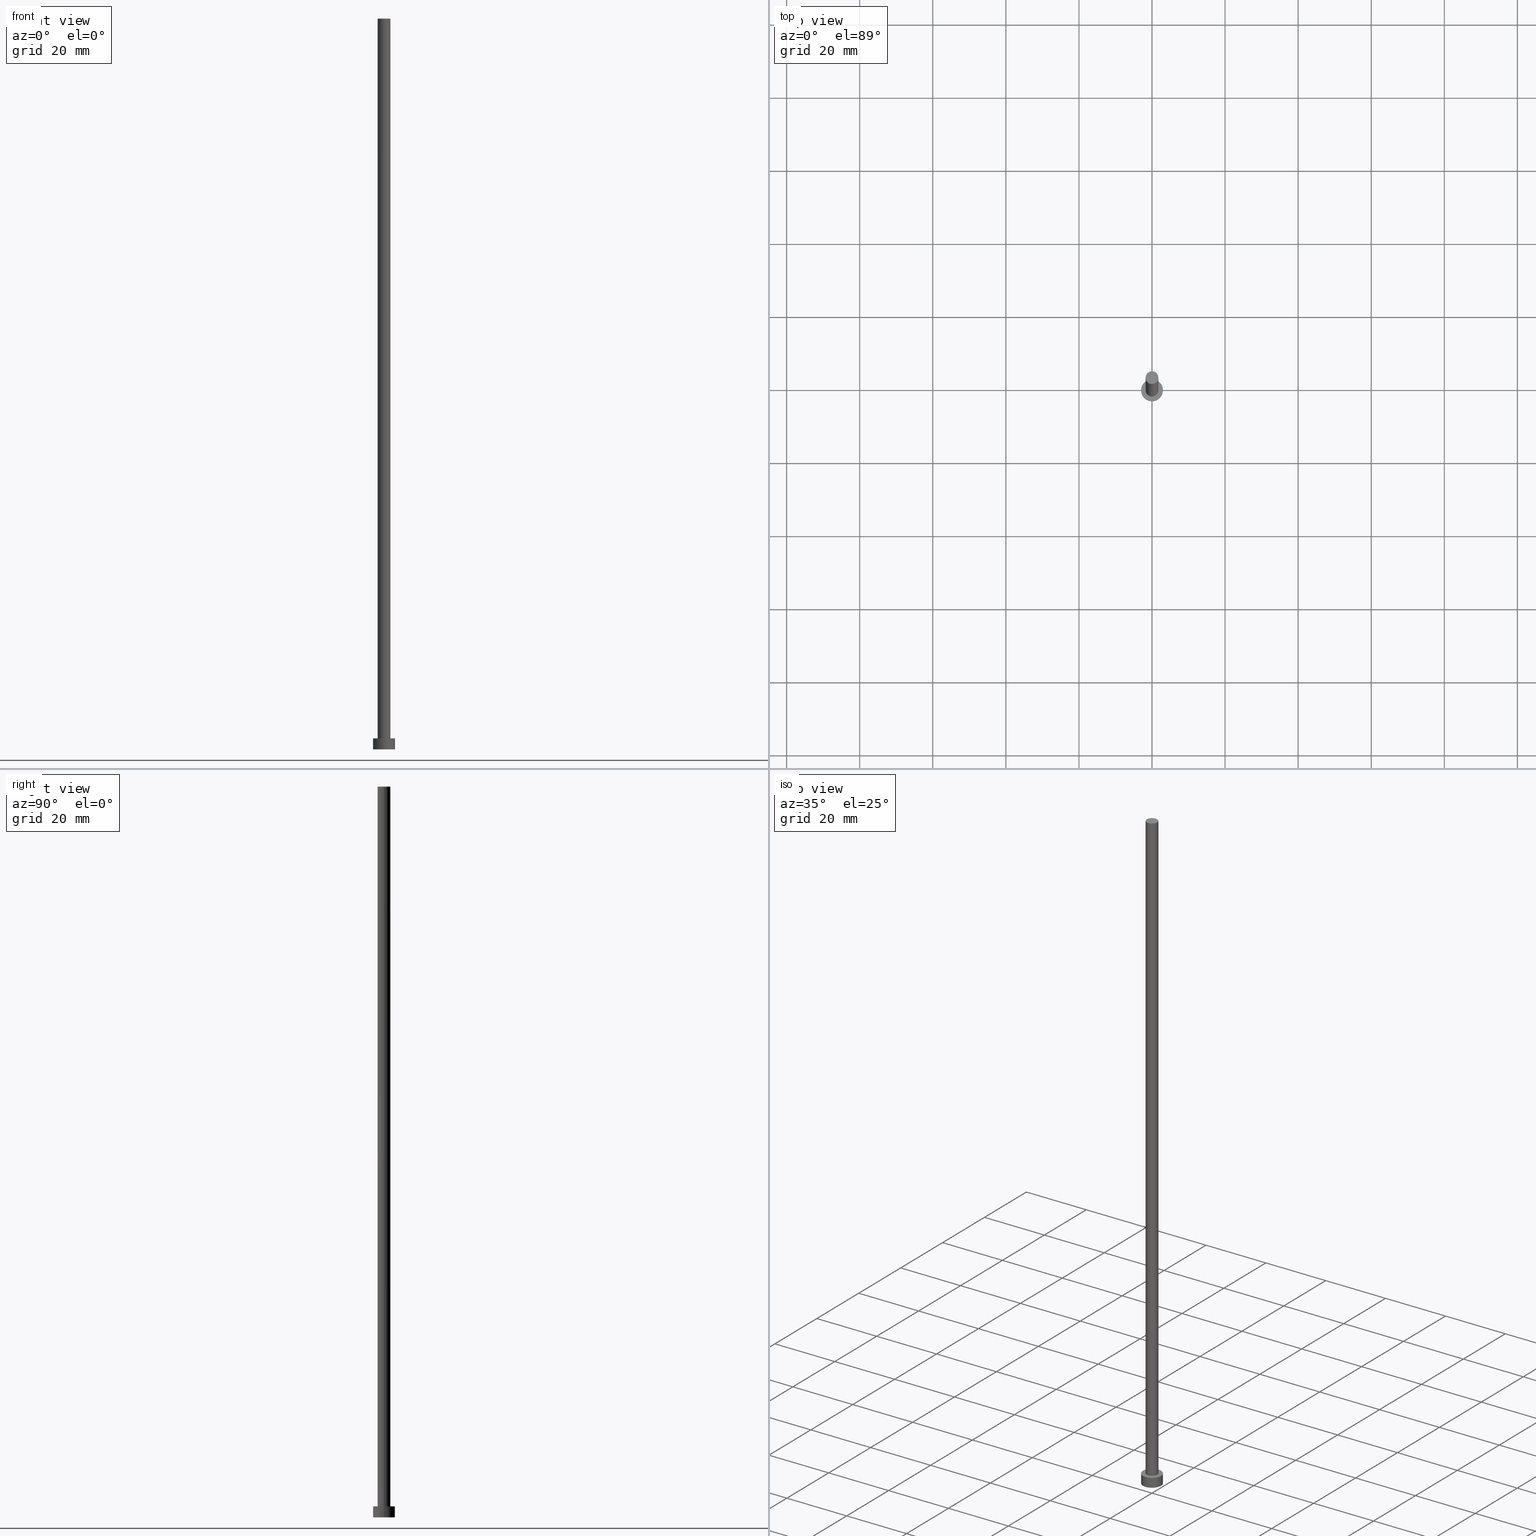
[diagram: canonical four-view strip — front | top / right | iso, engineering-drawing reading convention]
A machine part, canonical four-view strip (front | top / right | iso — engineering-drawing reading convention). The complete STEP part file that produces these views, byte-faithful:
ISO-10303-21;
HEADER;
FILE_DESCRIPTION (( 'STEP AP203' ),
    '1' );
FILE_NAME ('4e38.STEP',
    '2023-02-13T16:50:53',
    ( '' ),
    ( '' ),
    'SwSTEP 2.0',
    'SolidWorks 2019',
    '' );
FILE_SCHEMA (( 'CONFIG_CONTROL_DESIGN' ));
ENDSEC;

DATA;
#1 = COORDINATED_UNIVERSAL_TIME_OFFSET ( 1, 0, .AHEAD. ) ;
#2 = CALENDAR_DATE ( 2023, 13, 2 ) ;
#3 = ORIENTED_EDGE ( 'NONE', *, *, #55, .F. ) ;
#4 = DIRECTION ( 'NONE',  ( -1.000000000000000000, 0.000000000000000000, 0.000000000000000000 ) ) ;
#5 = ADVANCED_FACE ( 'NONE', ( #111, #207 ), #42, .T. ) ;
#6 = ORIENTED_EDGE ( 'NONE', *, *, #158, .T. ) ;
#7 = CARTESIAN_POINT ( 'NONE',  ( 0.000000000000000000, 0.000000000000000000, 3.000000000000000000 ) ) ;
#8 = EDGE_LOOP ( 'NONE', ( #37, #146 ) ) ;
#9 = DIRECTION ( 'NONE',  ( 1.000000000000000000, 0.000000000000000000, 0.000000000000000000 ) ) ;
#10 = APPLICATION_PROTOCOL_DEFINITION ( 'international standard', 'config_control_design', 1994, #29 ) ;
#11 = CC_DESIGN_APPROVAL ( #232, ( #16 ) ) ;
#12 = AXIS2_PLACEMENT_3D ( 'NONE', #190, #148, #4 ) ;
#13 = LINE ( 'NONE', #136, #165 ) ;
#14 = CARTESIAN_POINT ( 'NONE',  ( 3.000000000000000444, 3.673940397442060361E-16, 0.000000000000000000 ) ) ;
#15 = CARTESIAN_POINT ( 'NONE',  ( 0.000000000000000000, 0.000000000000000000, 3.000000000000000000 ) ) ;
#16 = PRODUCT_DEFINITION_FORMATION_WITH_SPECIFIED_SOURCE ( 'LIBOVOLN�', '', #49, .NOT_KNOWN. ) ;
#17 = CIRCLE ( 'NONE', #52, 1.750000000000000000 ) ;
#18 = CC_DESIGN_DATE_AND_TIME_ASSIGNMENT ( #200, #82, ( #182 ) ) ;
#19 = ORIENTED_EDGE ( 'NONE', *, *, #224, .F. ) ;
#20 = DATE_AND_TIME ( #241, #160 ) ;
#21 = DIRECTION ( 'NONE',  ( 1.000000000000000000, 0.000000000000000000, 0.000000000000000000 ) ) ;
#22 = ADVANCED_FACE ( 'NONE', ( #171 ), #249, .T. ) ;
#23 = ORIENTED_EDGE ( 'NONE', *, *, #144, .T. ) ;
#24 = VERTEX_POINT ( 'NONE', #89 ) ;
#25 = DIRECTION ( 'NONE',  ( 0.000000000000000000, 0.000000000000000000, 1.000000000000000000 ) ) ;
#26 = LOCAL_TIME ( 17, 50, 53.00000000000000000, #41 ) ;
#27 = ORIENTED_EDGE ( 'NONE', *, *, #35, .F. ) ;
#28 = APPROVAL ( #100, 'NEUR�EN�' ) ;
#29 = APPLICATION_CONTEXT ( 'configuration controlled 3d designs of mechanical parts and assemblies' ) ;
#30 = ORIENTED_EDGE ( 'NONE', *, *, #224, .T. ) ;
#31 = LINE ( 'NONE', #78, #105 ) ;
#32 = ADVANCED_FACE ( 'NONE', ( #130 ), #88, .T. ) ;
#33 = CARTESIAN_POINT ( 'NONE',  ( 0.000000000000000000, 0.000000000000000000, 200.0000000000000000 ) ) ;
#34 = DIRECTION ( 'NONE',  ( 1.000000000000000000, 0.000000000000000000, 0.000000000000000000 ) ) ;
#35 = EDGE_CURVE ( 'NONE', #246, #227, #154, .T. ) ;
#36 = APPLICATION_PROTOCOL_DEFINITION ( 'international standard', 'config_control_design', 1994, #126 ) ;
#37 = ORIENTED_EDGE ( 'NONE', *, *, #140, .T. ) ;
#38 = LOCAL_TIME ( 17, 50, 53.00000000000000000, #63 ) ;
#39 = PERSON_AND_ORGANIZATION_ROLE ( 'classification_officer' ) ;
#40 = AXIS2_PLACEMENT_3D ( 'NONE', #181, #118, #34 ) ;
#41 = COORDINATED_UNIVERSAL_TIME_OFFSET ( 1, 0, .AHEAD. ) ;
#42 = PLANE ( 'NONE',  #238 ) ;
#43 = APPROVAL_PERSON_ORGANIZATION ( #183, #109, #240 ) ;
#44 = UNCERTAINTY_MEASURE_WITH_UNIT (LENGTH_MEASURE( 1.000000000000000082E-05 ), #91, 'distance_accuracy_value', 'NONE');
#45 = ORIENTED_EDGE ( 'NONE', *, *, #169, .T. ) ;
#46 = AXIS2_PLACEMENT_3D ( 'NONE', #90, #149, #228 ) ;
#47 = EDGE_LOOP ( 'NONE', ( #226, #230, #30, #194 ) ) ;
#48 = LINE ( 'NONE', #131, #112 ) ;
#49 = PRODUCT ( '4e38', '4e38', '', ( #104 ) ) ;
#50 = AXIS2_PLACEMENT_3D ( 'NONE', #137, #215, #75 ) ;
#51 = VERTEX_POINT ( 'NONE', #206 ) ;
#52 = AXIS2_PLACEMENT_3D ( 'NONE', #33, #196, #135 ) ;
#53 = DIRECTION ( 'NONE',  ( -0.000000000000000000, -0.000000000000000000, -1.000000000000000000 ) ) ;
#54 = CARTESIAN_POINT ( 'NONE',  ( -1.750000000000000000, 0.000000000000000000, 3.000000000000000000 ) ) ;
#55 = EDGE_CURVE ( 'NONE', #51, #175, #163, .T. ) ;
#56 = AXIS2_PLACEMENT_3D ( 'NONE', #142, #161, #21 ) ;
#57 = CARTESIAN_POINT ( 'NONE',  ( 0.000000000000000000, 0.000000000000000000, 3.000000000000000000 ) ) ;
#58 = CYLINDRICAL_SURFACE ( 'NONE', #167, 1.750000000000000000 ) ;
#59 = DIRECTION ( 'NONE',  ( 0.000000000000000000, 0.000000000000000000, 1.000000000000000000 ) ) ;
#60 = PERSON_AND_ORGANIZATION_ROLE ( 'creator' ) ;
#61 = APPROVAL_PERSON_ORGANIZATION ( #166, #232, #64 ) ;
#62 = APPROVAL_DATE_TIME ( #184, #109 ) ;
#63 = COORDINATED_UNIVERSAL_TIME_OFFSET ( 1, 0, .AHEAD. ) ;
#64 = APPROVAL_ROLE ( '' ) ;
#65 = CC_DESIGN_PERSON_AND_ORGANIZATION_ASSIGNMENT ( #205, #80, ( #49 ) ) ;
#66 = PERSON ( 'NEUR�EN�', 'NEUR�EN�', 'NEUR�EN�', ('NEUR�EN�'), ('NEUR�EN�'), ('NEUR�EN�') ) ;
#67 = EDGE_LOOP ( 'NONE', ( #45, #6 ) ) ;
#68 = CARTESIAN_POINT ( 'NONE',  ( 0.000000000000000000, 0.000000000000000000, 3.000000000000000000 ) ) ;
#69 = CIRCLE ( 'NONE', #50, 3.000000000000000444 ) ;
#70 = EDGE_LOOP ( 'NONE', ( #185, #225, #102, #132 ) ) ;
#71 = CARTESIAN_POINT ( 'NONE',  ( 0.000000000000000000, 0.000000000000000000, 200.0000000000000000 ) ) ;
#72 = ADVANCED_FACE ( 'NONE', ( #106 ), #73, .T. ) ;
#73 = PLANE ( 'NONE',  #248 ) ;
#74 = AXIS2_PLACEMENT_3D ( 'NONE', #76, #59, #180 ) ;
#75 = DIRECTION ( 'NONE',  ( 1.000000000000000000, 0.000000000000000000, 0.000000000000000000 ) ) ;
#76 = CARTESIAN_POINT ( 'NONE',  ( 0.000000000000000000, 0.000000000000000000, 0.000000000000000000 ) ) ;
#77 = CC_DESIGN_APPROVAL ( #28, ( #182 ) ) ;
#78 = CARTESIAN_POINT ( 'NONE',  ( -1.750000000000000000, 0.000000000000000000, 200.0000000000000000 ) ) ;
#79 = CLOSED_SHELL ( 'NONE', ( #129, #32, #193, #5, #150, #22, #72 ) ) ;
#80 = PERSON_AND_ORGANIZATION_ROLE ( 'design_owner' ) ;
#81 = AXIS2_PLACEMENT_3D ( 'NONE', #68, #87, #115 ) ;
#82 = DATE_TIME_ROLE ( 'creation_date' ) ;
#83 = CC_DESIGN_PERSON_AND_ORGANIZATION_ASSIGNMENT ( #159, #60, ( #182 ) ) ;
#84 = PERSON_AND_ORGANIZATION ( #66, #202 ) ;
#85 = APPROVAL_ROLE ( '' ) ;
#86 = EDGE_LOOP ( 'NONE', ( #27, #168, #173, #209 ) ) ;
#87 = DIRECTION ( 'NONE',  ( 0.000000000000000000, 0.000000000000000000, 1.000000000000000000 ) ) ;
#88 = CYLINDRICAL_SURFACE ( 'NONE', #12, 3.000000000000000444 ) ;
#89 = CARTESIAN_POINT ( 'NONE',  ( 3.000000000000000444, 3.673940397442060361E-16, 3.000000000000000000 ) ) ;
#90 = CARTESIAN_POINT ( 'NONE',  ( 0.000000000000000000, 0.000000000000000000, 3.000000000000000000 ) ) ;
#91 =( LENGTH_UNIT ( ) NAMED_UNIT ( * ) SI_UNIT ( .MILLI., .METRE. ) );
#92 = AXIS2_PLACEMENT_3D ( 'NONE', #15, #197, #234 ) ;
#93 = CC_DESIGN_SECURITY_CLASSIFICATION ( #153, ( #16 ) ) ;
#94 = CC_DESIGN_PERSON_AND_ORGANIZATION_ASSIGNMENT ( #203, #145, ( #16 ) ) ;
#95 = CARTESIAN_POINT ( 'NONE',  ( 0.000000000000000000, 0.000000000000000000, 0.000000000000000000 ) ) ;
#96 = DIRECTION ( 'NONE',  ( 1.000000000000000000, 0.000000000000000000, -0.000000000000000000 ) ) ;
#97 = PERSON_AND_ORGANIZATION ( #66, #202 ) ;
#98 = CALENDAR_DATE ( 2023, 13, 2 ) ;
#99 = EDGE_CURVE ( 'NONE', #246, #51, #48, .T. ) ;
#100 = APPROVAL_STATUS ( 'not_yet_approved' ) ;
#101 =( GEOMETRIC_REPRESENTATION_CONTEXT ( 3 ) GLOBAL_UNCERTAINTY_ASSIGNED_CONTEXT ( ( #44 ) ) GLOBAL_UNIT_ASSIGNED_CONTEXT ( ( #91, #231, #119 ) ) REPRESENTATION_CONTEXT ( 'NONE', 'WORKASPACE' ) );
#102 = ORIENTED_EDGE ( 'NONE', *, *, #251, .T. ) ;
#103 = DATE_TIME_ROLE ( 'classification_date' ) ;
#104 = MECHANICAL_CONTEXT ( 'NONE', #29, 'mechanical' ) ;
#105 = VECTOR ( 'NONE', #134, 1000.000000000000000 ) ;
#106 = FACE_OUTER_BOUND ( 'NONE', #8, .T. ) ;
#107 = DESIGN_CONTEXT ( 'detailed design', #126, 'design' ) ;
#108 = DIRECTION ( 'NONE',  ( 1.000000000000000000, 0.000000000000000000, -0.000000000000000000 ) ) ;
#109 = APPROVAL ( #237, 'NEUR�EN�' ) ;
#110 = ORIENTED_EDGE ( 'NONE', *, *, #158, .F. ) ;
#111 = FACE_BOUND ( 'NONE', #243, .T. ) ;
#112 = VECTOR ( 'NONE', #210, 1000.000000000000000 ) ;
#113 = ORIENTED_EDGE ( 'NONE', *, *, #216, .F. ) ;
#114 = EDGE_CURVE ( 'NONE', #175, #51, #172, .T. ) ;
#115 = DIRECTION ( 'NONE',  ( 1.000000000000000000, 0.000000000000000000, 0.000000000000000000 ) ) ;
#116 = LOCAL_TIME ( 17, 50, 53.00000000000000000, #1 ) ;
#117 = AXIS2_PLACEMENT_3D ( 'NONE', #71, #127, #244 ) ;
#118 = DIRECTION ( 'NONE',  ( 0.000000000000000000, 0.000000000000000000, 1.000000000000000000 ) ) ;
#119 =( NAMED_UNIT ( * ) SI_UNIT ( $, .STERADIAN. ) SOLID_ANGLE_UNIT ( ) );
#120 = CARTESIAN_POINT ( 'NONE',  ( 0.000000000000000000, 0.000000000000000000, 200.0000000000000000 ) ) ;
#121 = COORDINATED_UNIVERSAL_TIME_OFFSET ( 1, 0, .AHEAD. ) ;
#122 = ORIENTED_EDGE ( 'NONE', *, *, #125, .F. ) ;
#123 = APPROVAL_DATE_TIME ( #221, #28 ) ;
#124 = APPROVAL_DATE_TIME ( #236, #232 ) ;
#125 = EDGE_CURVE ( 'NONE', #201, #220, #204, .T. ) ;
#126 = APPLICATION_CONTEXT ( 'configuration controlled 3d designs of mechanical parts and assemblies' ) ;
#127 = DIRECTION ( 'NONE',  ( 0.000000000000000000, 0.000000000000000000, 1.000000000000000000 ) ) ;
#128 = EDGE_LOOP ( 'NONE', ( #110, #23, #229, #19 ) ) ;
#129 = ADVANCED_FACE ( 'NONE', ( #176 ), #58, .T. ) ;
#130 = FACE_OUTER_BOUND ( 'NONE', #128, .T. ) ;
#131 = CARTESIAN_POINT ( 'NONE',  ( 1.750000000000000000, 2.143131898507868297E-16, 200.0000000000000000 ) ) ;
#132 = ORIENTED_EDGE ( 'NONE', *, *, #114, .T. ) ;
#133 = DIRECTION ( 'NONE',  ( -0.000000000000000000, -0.000000000000000000, -1.000000000000000000 ) ) ;
#134 = DIRECTION ( 'NONE',  ( -0.000000000000000000, -0.000000000000000000, -1.000000000000000000 ) ) ;
#135 = DIRECTION ( 'NONE',  ( 1.000000000000000000, 0.000000000000000000, 0.000000000000000000 ) ) ;
#136 = CARTESIAN_POINT ( 'NONE',  ( 3.000000000000000444, 3.673940397442060361E-16, 3.000000000000000000 ) ) ;
#137 = CARTESIAN_POINT ( 'NONE',  ( 0.000000000000000000, 0.000000000000000000, 3.000000000000000000 ) ) ;
#138 = APPROVAL_PERSON_ORGANIZATION ( #97, #28, #85 ) ;
#139 = CALENDAR_DATE ( 2023, 13, 2 ) ;
#140 = EDGE_CURVE ( 'NONE', #227, #246, #17, .T. ) ;
#141 = PERSON_AND_ORGANIZATION ( #66, #202 ) ;
#142 = CARTESIAN_POINT ( 'NONE',  ( 0.000000000000000000, 0.000000000000000000, 0.000000000000000000 ) ) ;
#143 = APPROVAL_STATUS ( 'not_yet_approved' ) ;
#144 = EDGE_CURVE ( 'NONE', #24, #220, #13, .T. ) ;
#145 = PERSON_AND_ORGANIZATION_ROLE ( 'design_supplier' ) ;
#146 = ORIENTED_EDGE ( 'NONE', *, *, #35, .T. ) ;
#147 = DIRECTION ( 'NONE',  ( -0.000000000000000000, -0.000000000000000000, -1.000000000000000000 ) ) ;
#148 = DIRECTION ( 'NONE',  ( -0.000000000000000000, -0.000000000000000000, -1.000000000000000000 ) ) ;
#149 = DIRECTION ( 'NONE',  ( 0.000000000000000000, 0.000000000000000000, 1.000000000000000000 ) ) ;
#150 = ADVANCED_FACE ( 'NONE', ( #198 ), #217, .F. ) ;
#151 = ORIENTED_EDGE ( 'NONE', *, *, #114, .F. ) ;
#152 = CIRCLE ( 'NONE', #156, 3.000000000000000444 ) ;
#153 = SECURITY_CLASSIFICATION ( '', '', #223 ) ;
#154 = CIRCLE ( 'NONE', #117, 1.750000000000000000 ) ;
#155 = DIRECTION ( 'NONE',  ( -1.000000000000000000, 0.000000000000000000, 0.000000000000000000 ) ) ;
#156 = AXIS2_PLACEMENT_3D ( 'NONE', #57, #157, #9 ) ;
#157 = DIRECTION ( 'NONE',  ( 0.000000000000000000, 0.000000000000000000, 1.000000000000000000 ) ) ;
#158 = EDGE_CURVE ( 'NONE', #24, #191, #152, .T. ) ;
#159 = PERSON_AND_ORGANIZATION ( #66, #202 ) ;
#160 = LOCAL_TIME ( 17, 50, 53.00000000000000000, #121 ) ;
#161 = DIRECTION ( 'NONE',  ( 0.000000000000000000, 0.000000000000000000, 1.000000000000000000 ) ) ;
#162 = MANIFOLD_SOLID_BREP ( 'P�idat vysunut�m3', #79 ) ;
#163 = CIRCLE ( 'NONE', #46, 1.750000000000000000 ) ;
#164 = PERSON_AND_ORGANIZATION_ROLE ( 'creator' ) ;
#165 = VECTOR ( 'NONE', #53, 1000.000000000000000 ) ;
#166 = PERSON_AND_ORGANIZATION ( #66, #202 ) ;
#167 = AXIS2_PLACEMENT_3D ( 'NONE', #120, #133, #155 ) ;
#168 = ORIENTED_EDGE ( 'NONE', *, *, #99, .T. ) ;
#169 = EDGE_CURVE ( 'NONE', #191, #24, #69, .T. ) ;
#170 = CARTESIAN_POINT ( 'NONE',  ( 0.000000000000000000, 0.000000000000000000, 200.0000000000000000 ) ) ;
#171 = FACE_OUTER_BOUND ( 'NONE', #70, .T. ) ;
#172 = CIRCLE ( 'NONE', #81, 1.750000000000000000 ) ;
#173 = ORIENTED_EDGE ( 'NONE', *, *, #55, .T. ) ;
#174 = PRODUCT_RELATED_PRODUCT_CATEGORY ( 'detail', '', ( #49 ) ) ;
#175 = VERTEX_POINT ( 'NONE', #54 ) ;
#176 = FACE_OUTER_BOUND ( 'NONE', #86, .T. ) ;
#177 = DIRECTION ( 'NONE',  ( -0.000000000000000000, -0.000000000000000000, -1.000000000000000000 ) ) ;
#178 = PRODUCT_DEFINITION_SHAPE ( 'NONE', 'NONE',  #182 ) ;
#179 = FACE_OUTER_BOUND ( 'NONE', #47, .T. ) ;
#180 = DIRECTION ( 'NONE',  ( 1.000000000000000000, 0.000000000000000000, 0.000000000000000000 ) ) ;
#181 = CARTESIAN_POINT ( 'NONE',  ( 0.000000000000000000, 0.000000000000000000, 0.000000000000000000 ) ) ;
#182 = PRODUCT_DEFINITION ( 'NEZN�M�', '', #16, #107 ) ;
#183 = PERSON_AND_ORGANIZATION ( #66, #202 ) ;
#184 = DATE_AND_TIME ( #219, #116 ) ;
#185 = ORIENTED_EDGE ( 'NONE', *, *, #99, .F. ) ;
#186 = AXIS2_PLACEMENT_3D ( 'NONE', #95, #235, #96 ) ;
#187 = AXIS2_PLACEMENT_3D ( 'NONE', #170, #147, #192 ) ;
#188 = SHAPE_DEFINITION_REPRESENTATION ( #178, #242 ) ;
#189 = CARTESIAN_POINT ( 'NONE',  ( 0.000000000000000000, 0.000000000000000000, 200.0000000000000000 ) ) ;
#190 = CARTESIAN_POINT ( 'NONE',  ( 0.000000000000000000, 0.000000000000000000, 3.000000000000000000 ) ) ;
#191 = VERTEX_POINT ( 'NONE', #233 ) ;
#192 = DIRECTION ( 'NONE',  ( -1.000000000000000000, 0.000000000000000000, 0.000000000000000000 ) ) ;
#193 = ADVANCED_FACE ( 'NONE', ( #179 ), #253, .T. ) ;
#194 = ORIENTED_EDGE ( 'NONE', *, *, #125, .T. ) ;
#195 = CC_DESIGN_DATE_AND_TIME_ASSIGNMENT ( #20, #103, ( #153 ) ) ;
#196 = DIRECTION ( 'NONE',  ( 0.000000000000000000, 0.000000000000000000, 1.000000000000000000 ) ) ;
#197 = DIRECTION ( 'NONE',  ( -0.000000000000000000, -0.000000000000000000, -1.000000000000000000 ) ) ;
#198 = FACE_OUTER_BOUND ( 'NONE', #222, .T. ) ;
#199 = CC_DESIGN_APPROVAL ( #109, ( #153 ) ) ;
#200 = DATE_AND_TIME ( #139, #26 ) ;
#201 = VERTEX_POINT ( 'NONE', #252 ) ;
#202 = ORGANIZATION ( 'NEUR�EN�', 'NEUR�EN�', '' ) ;
#203 = PERSON_AND_ORGANIZATION ( #66, #202 ) ;
#204 = CIRCLE ( 'NONE', #40, 3.000000000000000444 ) ;
#205 = PERSON_AND_ORGANIZATION ( #66, #202 ) ;
#206 = CARTESIAN_POINT ( 'NONE',  ( 1.750000000000000000, 2.143131898507868297E-16, 3.000000000000000000 ) ) ;
#207 = FACE_OUTER_BOUND ( 'NONE', #67, .T. ) ;
#208 = DIRECTION ( 'NONE',  ( 1.000000000000000000, 0.000000000000000000, -0.000000000000000000 ) ) ;
#209 = ORIENTED_EDGE ( 'NONE', *, *, #251, .F. ) ;
#210 = DIRECTION ( 'NONE',  ( -0.000000000000000000, -0.000000000000000000, -1.000000000000000000 ) ) ;
#211 = CARTESIAN_POINT ( 'NONE',  ( -1.750000000000000000, 0.000000000000000000, 200.0000000000000000 ) ) ;
#212 = CC_DESIGN_PERSON_AND_ORGANIZATION_ASSIGNMENT ( #84, #164, ( #16 ) ) ;
#213 = CARTESIAN_POINT ( 'NONE',  ( -3.000000000000000444, 0.000000000000000000, 3.000000000000000000 ) ) ;
#214 = CIRCLE ( 'NONE', #74, 3.000000000000000444 ) ;
#215 = DIRECTION ( 'NONE',  ( 0.000000000000000000, 0.000000000000000000, 1.000000000000000000 ) ) ;
#216 = EDGE_CURVE ( 'NONE', #220, #201, #214, .T. ) ;
#217 = PLANE ( 'NONE',  #186 ) ;
#218 = VECTOR ( 'NONE', #177, 1000.000000000000000 ) ;
#219 = CALENDAR_DATE ( 2023, 13, 2 ) ;
#220 = VERTEX_POINT ( 'NONE', #14 ) ;
#221 = DATE_AND_TIME ( #98, #38 ) ;
#222 = EDGE_LOOP ( 'NONE', ( #122, #113 ) ) ;
#223 = SECURITY_CLASSIFICATION_LEVEL ( 'unclassified' ) ;
#224 = EDGE_CURVE ( 'NONE', #191, #201, #254, .T. ) ;
#225 = ORIENTED_EDGE ( 'NONE', *, *, #140, .F. ) ;
#226 = ORIENTED_EDGE ( 'NONE', *, *, #144, .F. ) ;
#227 = VERTEX_POINT ( 'NONE', #211 ) ;
#228 = DIRECTION ( 'NONE',  ( 1.000000000000000000, 0.000000000000000000, 0.000000000000000000 ) ) ;
#229 = ORIENTED_EDGE ( 'NONE', *, *, #216, .T. ) ;
#230 = ORIENTED_EDGE ( 'NONE', *, *, #169, .F. ) ;
#231 =( NAMED_UNIT ( * ) PLANE_ANGLE_UNIT ( ) SI_UNIT ( $, .RADIAN. ) );
#232 = APPROVAL ( #143, 'NEUR�EN�' ) ;
#233 = CARTESIAN_POINT ( 'NONE',  ( -3.000000000000000444, 0.000000000000000000, 3.000000000000000000 ) ) ;
#234 = DIRECTION ( 'NONE',  ( -1.000000000000000000, 0.000000000000000000, 0.000000000000000000 ) ) ;
#235 = DIRECTION ( 'NONE',  ( 0.000000000000000000, 0.000000000000000000, 1.000000000000000000 ) ) ;
#236 = DATE_AND_TIME ( #2, #245 ) ;
#237 = APPROVAL_STATUS ( 'not_yet_approved' ) ;
#238 = AXIS2_PLACEMENT_3D ( 'NONE', #7, #25, #108 ) ;
#239 = COORDINATED_UNIVERSAL_TIME_OFFSET ( 1, 0, .AHEAD. ) ;
#240 = APPROVAL_ROLE ( '' ) ;
#241 = CALENDAR_DATE ( 2023, 13, 2 ) ;
#242 = ADVANCED_BREP_SHAPE_REPRESENTATION ( '4e38', ( #162, #56 ), #101 ) ;
#243 = EDGE_LOOP ( 'NONE', ( #151, #3 ) ) ;
#244 = DIRECTION ( 'NONE',  ( 1.000000000000000000, 0.000000000000000000, 0.000000000000000000 ) ) ;
#245 = LOCAL_TIME ( 17, 50, 53.00000000000000000, #239 ) ;
#246 = VERTEX_POINT ( 'NONE', #255 ) ;
#247 = CC_DESIGN_PERSON_AND_ORGANIZATION_ASSIGNMENT ( #141, #39, ( #153 ) ) ;
#248 = AXIS2_PLACEMENT_3D ( 'NONE', #189, #250, #208 ) ;
#249 = CYLINDRICAL_SURFACE ( 'NONE', #187, 1.750000000000000000 ) ;
#250 = DIRECTION ( 'NONE',  ( 0.000000000000000000, 0.000000000000000000, 1.000000000000000000 ) ) ;
#251 = EDGE_CURVE ( 'NONE', #227, #175, #31, .T. ) ;
#252 = CARTESIAN_POINT ( 'NONE',  ( -3.000000000000000444, 0.000000000000000000, 0.000000000000000000 ) ) ;
#253 = CYLINDRICAL_SURFACE ( 'NONE', #92, 3.000000000000000444 ) ;
#254 = LINE ( 'NONE', #213, #218 ) ;
#255 = CARTESIAN_POINT ( 'NONE',  ( 1.750000000000000000, 2.143131898507868297E-16, 200.0000000000000000 ) ) ;
ENDSEC;
END-ISO-10303-21;
